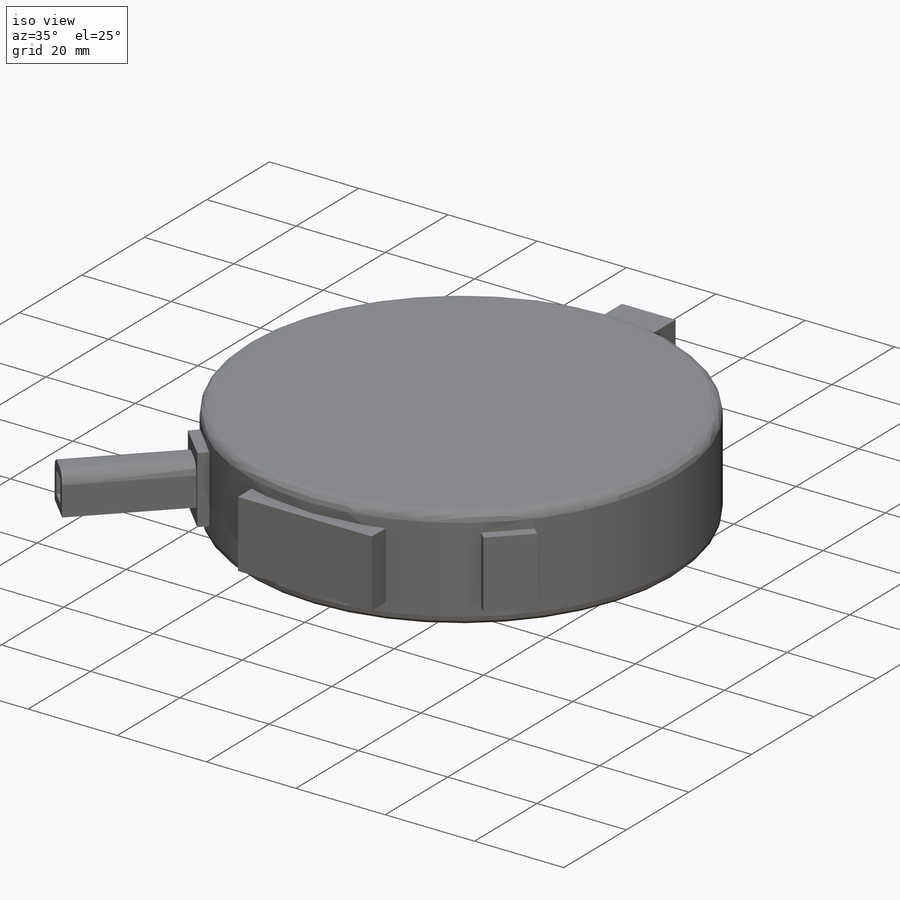
[diagram: iso view]
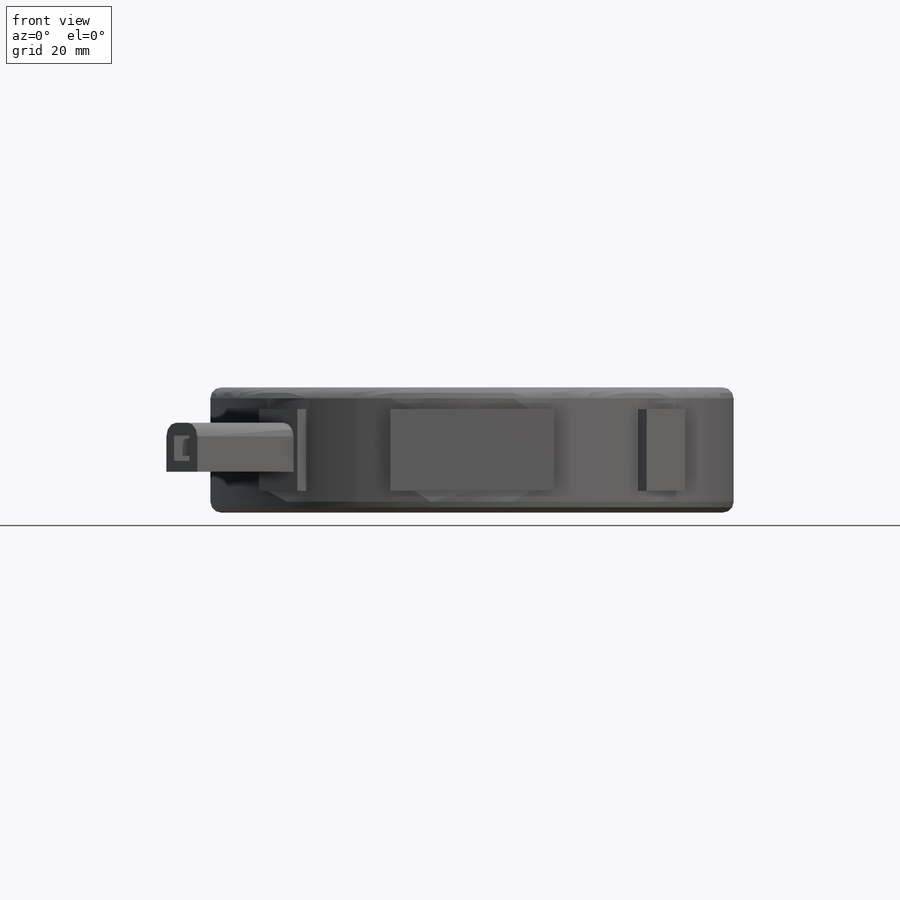
[diagram: front view]
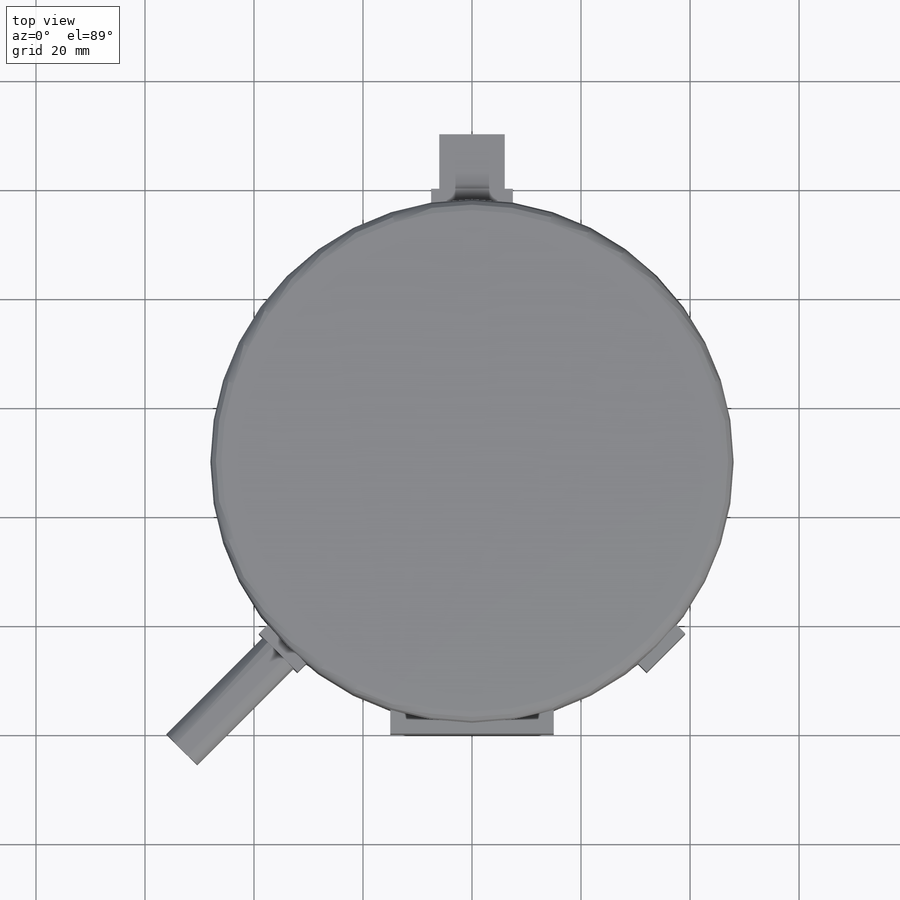
[diagram: top view]
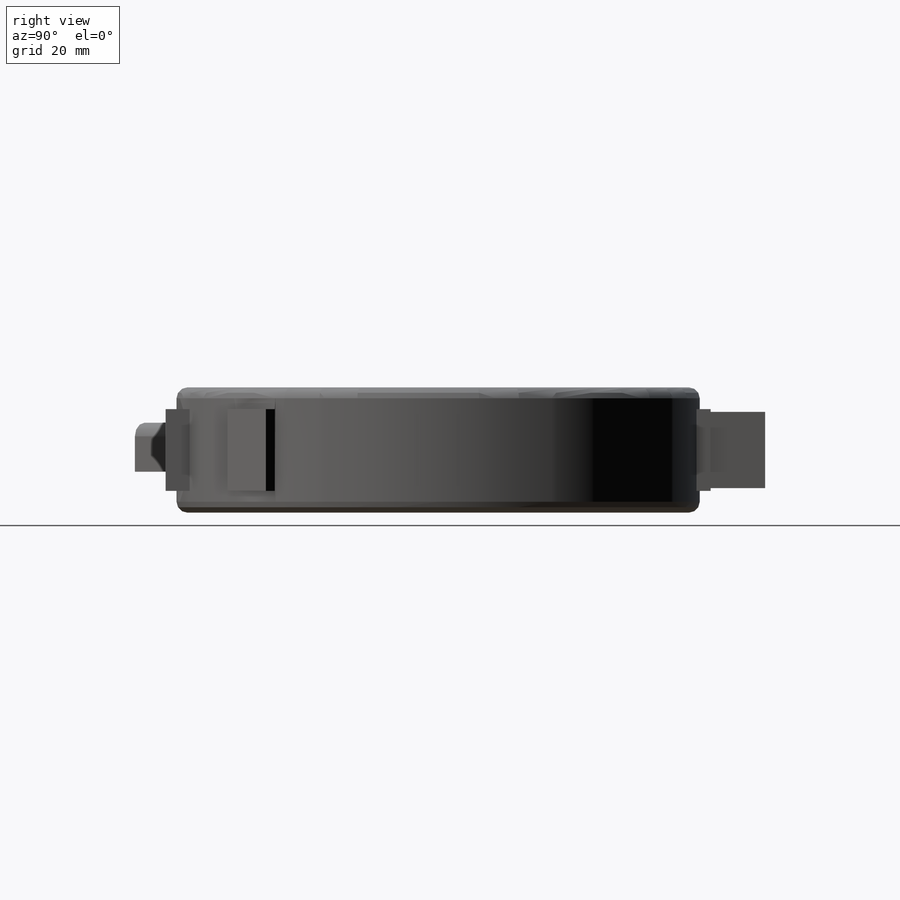
[diagram: right view]
SOLIDWORKS PART (.sldprt)
format: sldprt  version: not decoded by parser v0  size: 241,152 bytes
history: native  units: mm
features: sketch x4, extrude x4, plane x3, material x1, fillet x1 (+9 scaffold rows collapsed)
feature tree (22):
  scaffold x9  (default folders/planes/origin — collapsed)
  material  "Material <not specified>"
  plane  "Face"
  plane  "Dessus"
  plane  "Droite"
  sketch  "Esquisse1"  dims[c1.D1=96.0mm c1.D2=15.0mm c1.D3=50.0mm c1.D4=50.0mm c1.D5=48.0mm c2.D1=50.0mm c2.D5=~32.562435mm c3.D5=~2.024221deg c4.D5=~22.824406mm c5.D5=45.0deg c5.D6=30.0mm c5.D7=10.0mm]
  extrude  "Extrusion1"  Depth=15mm
  sketch  "Esquisse2"  dims[D1=96.0mm]
  extrude  "Extrusion2"  Depth=4mm
  fillet  "Congé1"  Radius=2mm
  sketch  "Esquisse5"  dims[D6=2.5mm D1=2.0mm D2=2.0mm D3=9.0mm D4=4.0mm D5=1.0mm]
  extrude  "Extrusion5"  Depth=25mm
  sketch  "Esquisse6"  dims[D1=6.0mm D2=7.0mm D3=1.0mm D4=1.0mm]
  extrude  "Extrusion6"  Depth=10mm
decode coverage: 9 of 9 modeling features carry decoded parameters
note: ~ marks probable driven/reference dimensions
note: suppression state not decoded; provenance and decode notes live in map.json
